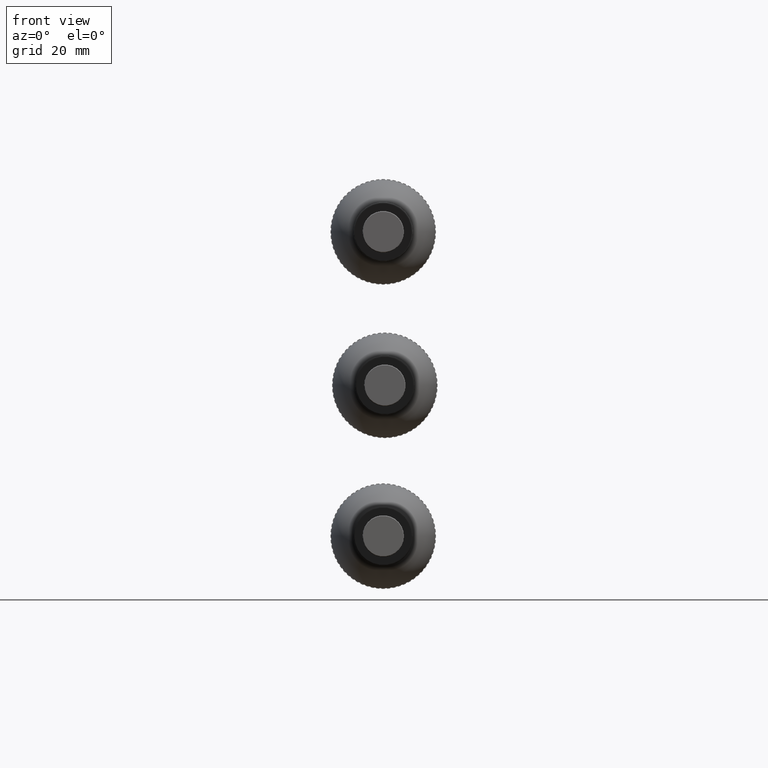
[diagram: clean part render]
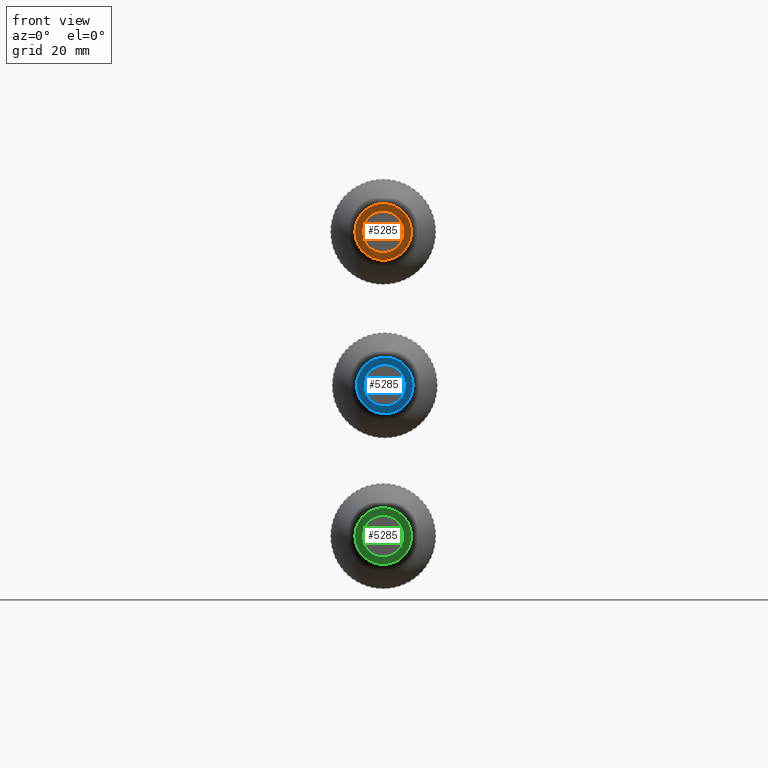
[diagram: same view with three faces highlighted in distinct colors, each labeled with its STEP entity id]
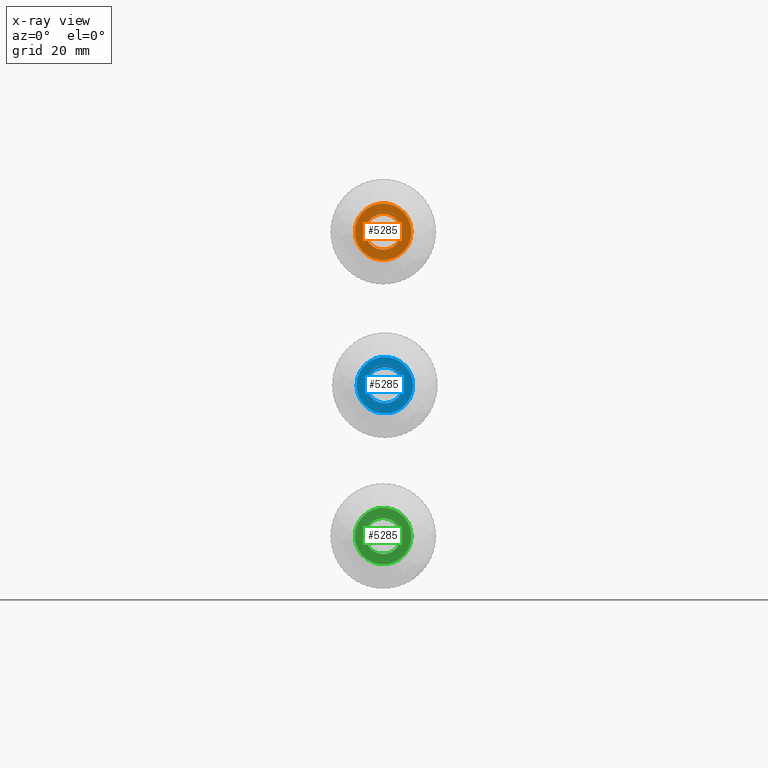
[diagram: x-ray of the same camera — body ghosted, the three highlighted faces saturated]
A machine part, front view with three faces highlighted in distinct colors.
The next image is the same camera in x-ray (body ghosted, the three faces saturated) — at least one of them is partly hidden behind the body in this view.
Their STEP definitions:

[orange] entity #5285 — the highlighted planar face has unit normal (0, -1, 0).
#606=PLANE('',#5626);
#873=FACE_BOUND('',#1294,.T.);
#958=FACE_OUTER_BOUND('',#1293,.T.);
#1293=EDGE_LOOP('',(#3478));
#1294=EDGE_LOOP('',(#3479));
#1708=CIRCLE('',#5623,9.5);
#1710=CIRCLE('',#5627,6.);
#2217=VERTEX_POINT('',#8441);
#2219=VERTEX_POINT('',#8447);
#2726=EDGE_CURVE('',#2217,#2217,#1708,.T.);
#2728=EDGE_CURVE('',#2219,#2219,#1710,.T.);
#3478=ORIENTED_EDGE('',*,*,#2726,.F.);
#3479=ORIENTED_EDGE('',*,*,#2728,.T.);
#5285=ADVANCED_FACE('',(#958,#873),#606,.T.);
#5623=AXIS2_PLACEMENT_3D('',#8442,#6485,#6486);
#5626=AXIS2_PLACEMENT_3D('',#8446,#6491,#6492);
#5627=AXIS2_PLACEMENT_3D('',#8448,#6493,#6494);
#6485=DIRECTION('center_axis',(0.,1.,0.));
#6486=DIRECTION('ref_axis',(-1.,0.,1.22464679914735E-16));
#6491=DIRECTION('center_axis',(0.,-1.,0.));
#6492=DIRECTION('ref_axis',(0.,0.,-1.));
#6493=DIRECTION('center_axis',(0.,1.,0.));
#6494=DIRECTION('ref_axis',(-1.,0.,0.));
#8441=CARTESIAN_POINT('',(9.5,0.,-2.32682891837997E-15));
#8442=CARTESIAN_POINT('Origin',(0.,0.,0.));
#8446=CARTESIAN_POINT('Origin',(0.,0.,0.));
#8447=CARTESIAN_POINT('',(6.,0.,7.34788079488412E-16));
#8448=CARTESIAN_POINT('Origin',(0.,0.,0.));

[blue] entity #5285 — the highlighted planar face has unit normal (-0, -1, 0).
#606=PLANE('',#5626);
#873=FACE_BOUND('',#1294,.T.);
#958=FACE_OUTER_BOUND('',#1293,.T.);
#1293=EDGE_LOOP('',(#3478));
#1294=EDGE_LOOP('',(#3479));
#1708=CIRCLE('',#5623,9.5);
#1710=CIRCLE('',#5627,6.);
#2217=VERTEX_POINT('',#8441);
#2219=VERTEX_POINT('',#8447);
#2726=EDGE_CURVE('',#2217,#2217,#1708,.T.);
#2728=EDGE_CURVE('',#2219,#2219,#1710,.T.);
#3478=ORIENTED_EDGE('',*,*,#2726,.F.);
#3479=ORIENTED_EDGE('',*,*,#2728,.T.);
#5285=ADVANCED_FACE('',(#958,#873),#606,.T.);
#5623=AXIS2_PLACEMENT_3D('',#8442,#6485,#6486);
#5626=AXIS2_PLACEMENT_3D('',#8446,#6491,#6492);
#5627=AXIS2_PLACEMENT_3D('',#8448,#6493,#6494);
#6485=DIRECTION('center_axis',(0.,1.,0.));
#6486=DIRECTION('ref_axis',(-1.,0.,1.22464679914735E-16));
#6491=DIRECTION('center_axis',(0.,-1.,0.));
#6492=DIRECTION('ref_axis',(0.,0.,-1.));
#6493=DIRECTION('center_axis',(0.,1.,0.));
#6494=DIRECTION('ref_axis',(-1.,0.,0.));
#8441=CARTESIAN_POINT('',(9.5,0.,-2.32682891837997E-15));
#8442=CARTESIAN_POINT('Origin',(0.,0.,0.));
#8446=CARTESIAN_POINT('Origin',(0.,0.,0.));
#8447=CARTESIAN_POINT('',(6.,0.,7.34788079488412E-16));
#8448=CARTESIAN_POINT('Origin',(0.,0.,0.));

[green] entity #5285 — the highlighted planar face has unit normal (0, -1, -0).
#606=PLANE('',#5626);
#873=FACE_BOUND('',#1294,.T.);
#958=FACE_OUTER_BOUND('',#1293,.T.);
#1293=EDGE_LOOP('',(#3478));
#1294=EDGE_LOOP('',(#3479));
#1708=CIRCLE('',#5623,9.5);
#1710=CIRCLE('',#5627,6.);
#2217=VERTEX_POINT('',#8441);
#2219=VERTEX_POINT('',#8447);
#2726=EDGE_CURVE('',#2217,#2217,#1708,.T.);
#2728=EDGE_CURVE('',#2219,#2219,#1710,.T.);
#3478=ORIENTED_EDGE('',*,*,#2726,.F.);
#3479=ORIENTED_EDGE('',*,*,#2728,.T.);
#5285=ADVANCED_FACE('',(#958,#873),#606,.T.);
#5623=AXIS2_PLACEMENT_3D('',#8442,#6485,#6486);
#5626=AXIS2_PLACEMENT_3D('',#8446,#6491,#6492);
#5627=AXIS2_PLACEMENT_3D('',#8448,#6493,#6494);
#6485=DIRECTION('center_axis',(0.,1.,0.));
#6486=DIRECTION('ref_axis',(-1.,0.,1.22464679914735E-16));
#6491=DIRECTION('center_axis',(0.,-1.,0.));
#6492=DIRECTION('ref_axis',(0.,0.,-1.));
#6493=DIRECTION('center_axis',(0.,1.,0.));
#6494=DIRECTION('ref_axis',(-1.,0.,0.));
#8441=CARTESIAN_POINT('',(9.5,0.,-2.32682891837997E-15));
#8442=CARTESIAN_POINT('Origin',(0.,0.,0.));
#8446=CARTESIAN_POINT('Origin',(0.,0.,0.));
#8447=CARTESIAN_POINT('',(6.,0.,7.34788079488412E-16));
#8448=CARTESIAN_POINT('Origin',(0.,0.,0.));